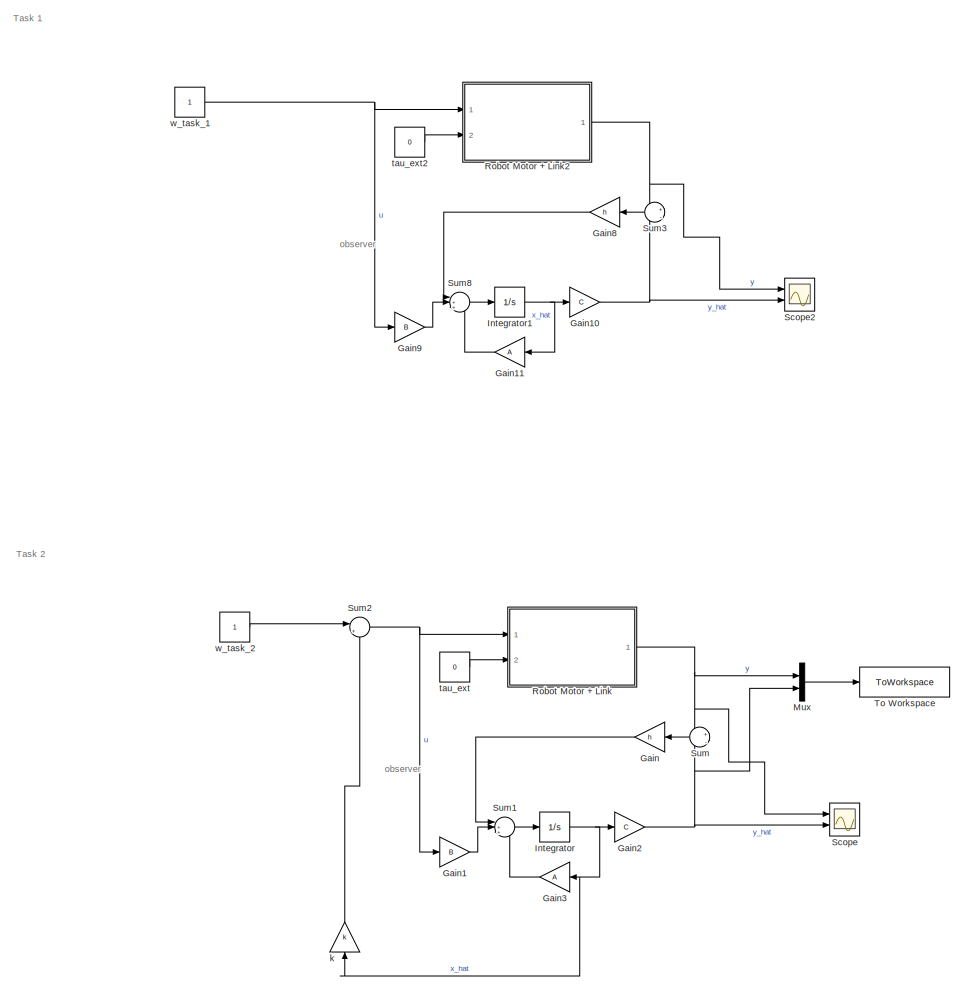
[diagram: root canvas - part 1/3, top left region]
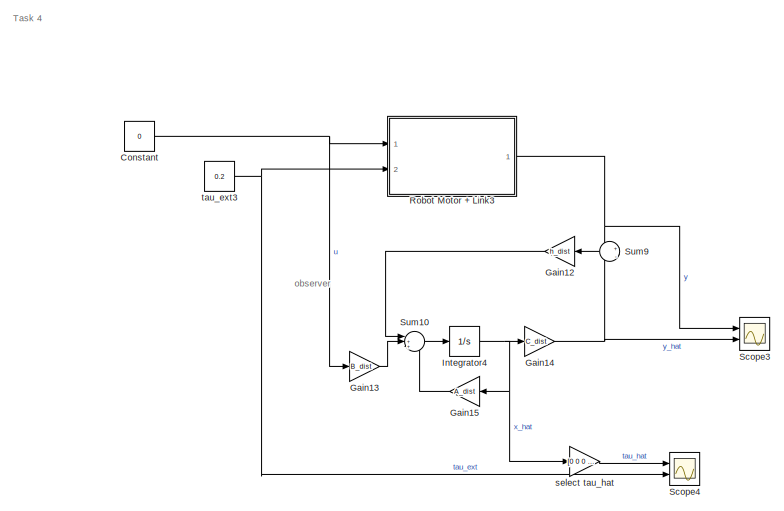
[diagram: root canvas - part 2/3, middle right region]
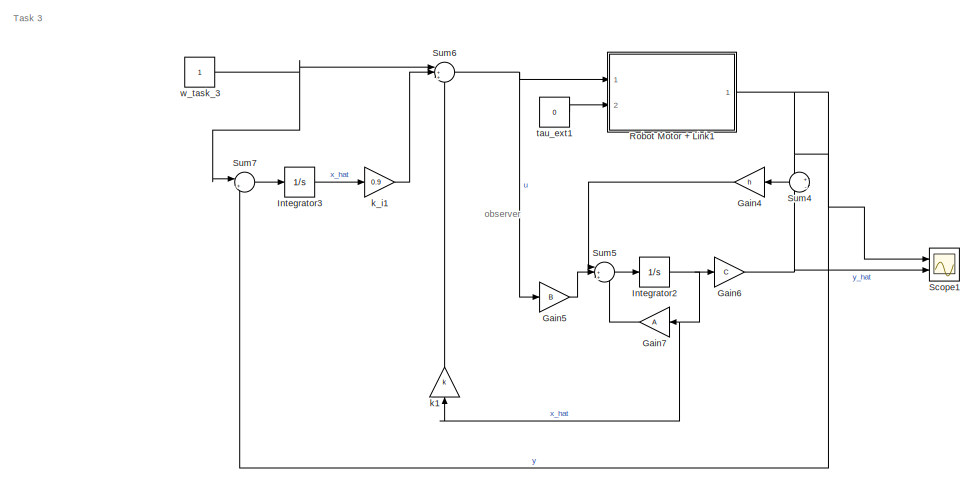
[diagram: root canvas - part 3/3, bottom left region]
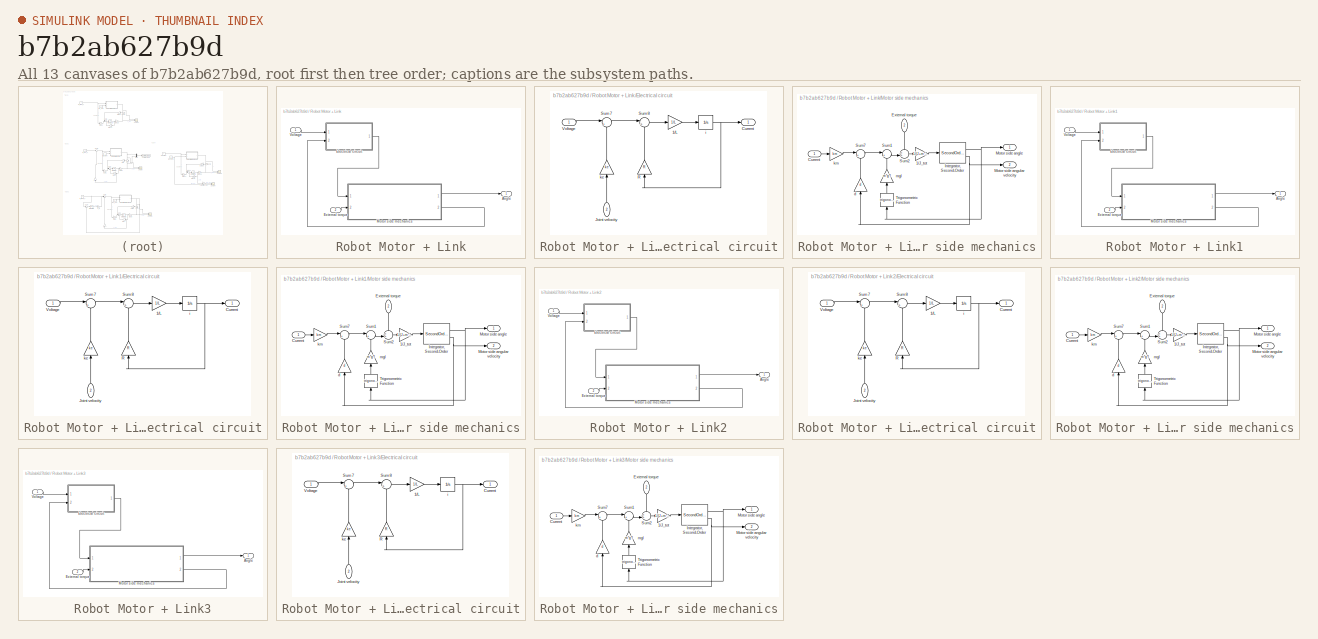
[diagram: thumbnail index - all 13 canvases of the model, root first then tree order]
MODEL slx_b7b2ab627b9d
KIND model
CONFIG AbsTol = auto
CONFIG EnableMultiTasking = off
CONFIG FixedStep = 0.001
CONFIG MaxStep = auto
CONFIG MinStep = auto
CONFIG RelTol = 1e-3
CONFIG SampleTimeConstraint = Unconstrained
CONFIG SolverName = ode4
CONFIG StartTime = 0.0
CONFIG StopTime = 15
BLOCK [Constant] Constant
  Value = 0
BLOCK [Gain] Gain
  Gain = h
  Multiplication = Matrix(K*u)
  NameLocation = top
BLOCK [Gain] Gain1
  Gain = B
  Multiplication = Matrix(K*u)
BLOCK [Gain] Gain10
  Gain = C
  Multiplication = Matrix(K*u)
BLOCK [Gain] Gain11
  Gain = A
  Multiplication = Matrix(K*u)
  NameLocation = top
BLOCK [Gain] Gain12
  Gain = h_dist
  Multiplication = Matrix(K*u)
  NameLocation = top
BLOCK [Gain] Gain13
  Gain = B_dist
  Multiplication = Matrix(K*u)
BLOCK [Gain] Gain14
  Gain = C_dist
  Multiplication = Matrix(K*u)
BLOCK [Gain] Gain15
  Gain = A_dist
  Multiplication = Matrix(K*u)
  NameLocation = top
BLOCK [Gain] Gain2
  Gain = C
  Multiplication = Matrix(K*u)
BLOCK [Gain] Gain3
  Gain = A
  Multiplication = Matrix(K*u)
  NameLocation = top
BLOCK [Gain] Gain4
  Gain = h
  Multiplication = Matrix(K*u)
  NameLocation = top
BLOCK [Gain] Gain5
  Gain = B
  Multiplication = Matrix(K*u)
BLOCK [Gain] Gain6
  Gain = C
  Multiplication = Matrix(K*u)
BLOCK [Gain] Gain7
  Gain = A
  Multiplication = Matrix(K*u)
  NameLocation = top
BLOCK [Gain] Gain8
  Gain = h
  Multiplication = Matrix(K*u)
  NameLocation = top
BLOCK [Gain] Gain9
  Gain = B
  Multiplication = Matrix(K*u)
BLOCK [Integrator] Integrator
  Ports = [1, 1]
BLOCK [Integrator] Integrator1
  Ports = [1, 1]
BLOCK [Integrator] Integrator2
  Ports = [1, 1]
BLOCK [Integrator] Integrator3
  Ports = [1, 1]
BLOCK [Integrator] Integrator4
  Ports = [1, 1]
BLOCK [Mux] Mux
  DisplayOption = bar
  Inputs = 2
  Ports = [2, 1]
BLOCK [SubSystem] Robot Motor + Link
  Ports = [2, 1]
  RequestExecContextInheritance = off
BLOCK [Outport] Robot Motor + Link/Angle
  VectorParamsAs1DForOutWhenUnconnected = off
BLOCK [SubSystem] Robot Motor + Link/Electrical circuit
  Ports = [2, 1]
  RequestExecContextInheritance = off
BLOCK [Gain] Robot Motor + Link/Electrical circuit/1//L
  Gain = 1/L
BLOCK [Outport] Robot Motor + Link/Electrical circuit/Current
  VectorParamsAs1DForOutWhenUnconnected = off
BLOCK [Inport] Robot Motor + Link/Electrical circuit/Joint velocity
  NameLocation = right
  Port = 2
BLOCK [Gain] Robot Motor + Link/Electrical circuit/R
  Gain = R
  NameLocation = right
BLOCK [Sum] Robot Motor + Link/Electrical circuit/Sum7
  Inputs = |+-
  Ports = [2, 1]
BLOCK [Sum] Robot Motor + Link/Electrical circuit/Sum8
  Inputs = |+-
  Ports = [2, 1]
BLOCK [Inport] Robot Motor + Link/Electrical circuit/Voltage
BLOCK [Integrator] Robot Motor + Link/Electrical circuit/i
  Ports = [1, 1]
BLOCK [Gain] Robot Motor + Link/Electrical circuit/ke
  Gain = ke
  NameLocation = right
BLOCK [Inport] Robot Motor + Link/External torque
  Port = 2
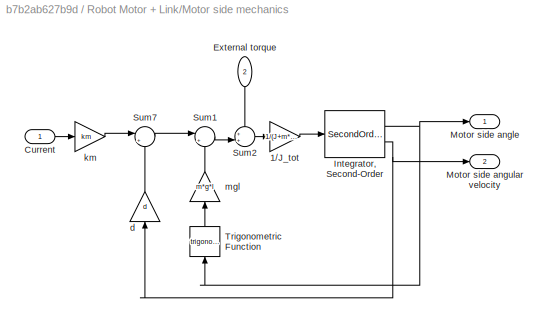
BLOCK [SubSystem] Robot Motor + Link/Motor side mechanics
  Ports = [2, 2]
  RequestExecContextInheritance = off
BLOCK [Gain] Robot Motor + Link/Motor side mechanics/1//J_tot
  Gain = 1/(J+m*l^2)
BLOCK [Inport] Robot Motor + Link/Motor side mechanics/Current
BLOCK [Inport] Robot Motor + Link/Motor side mechanics/External torque
  NameLocation = right
  Port = 2
BLOCK [SecondOrderIntegrator] Robot Motor + Link/Motor side mechanics/Integrator, Second-Order
  Ports = [1, 2]
BLOCK [Outport] Robot Motor + Link/Motor side mechanics/Motor side angle
  VectorParamsAs1DForOutWhenUnconnected = off
BLOCK [Outport] Robot Motor + Link/Motor side mechanics/Motor side angular velocity
  Port = 2
  VectorParamsAs1DForOutWhenUnconnected = off
BLOCK [Sum] Robot Motor + Link/Motor side mechanics/Sum1
  Inputs = |+-
  Ports = [2, 1]
BLOCK [Sum] Robot Motor + Link/Motor side mechanics/Sum2
  Inputs = ++|
  Ports = [2, 1]
BLOCK [Sum] Robot Motor + Link/Motor side mechanics/Sum7
  Inputs = |+-
  Ports = [2, 1]
BLOCK [Trigonometry] Robot Motor + Link/Motor side mechanics/Trigonometric Function
  NameLocation = right
  Ports = [1, 1]
BLOCK [Gain] Robot Motor + Link/Motor side mechanics/d
  Gain = d
  NameLocation = right
BLOCK [Gain] Robot Motor + Link/Motor side mechanics/km
  Gain = km
BLOCK [Gain] Robot Motor + Link/Motor side mechanics/mgl
  Gain = m*g*l
  NameLocation = right
BLOCK [Inport] Robot Motor + Link/Voltage
BLOCK [SubSystem] Robot Motor + Link1
  Ports = [2, 1]
  RequestExecContextInheritance = off
BLOCK [Outport] Robot Motor + Link1/Angle
  VectorParamsAs1DForOutWhenUnconnected = off
BLOCK [SubSystem] Robot Motor + Link1/Electrical circuit
  Ports = [2, 1]
  RequestExecContextInheritance = off
BLOCK [Gain] Robot Motor + Link1/Electrical circuit/1//L
  Gain = 1/L
BLOCK [Outport] Robot Motor + Link1/Electrical circuit/Current
  VectorParamsAs1DForOutWhenUnconnected = off
BLOCK [Inport] Robot Motor + Link1/Electrical circuit/Joint velocity
  NameLocation = right
  Port = 2
BLOCK [Gain] Robot Motor + Link1/Electrical circuit/R
  Gain = R
  NameLocation = right
BLOCK [Sum] Robot Motor + Link1/Electrical circuit/Sum7
  Inputs = |+-
  Ports = [2, 1]
BLOCK [Sum] Robot Motor + Link1/Electrical circuit/Sum8
  Inputs = |+-
  Ports = [2, 1]
BLOCK [Inport] Robot Motor + Link1/Electrical circuit/Voltage
BLOCK [Integrator] Robot Motor + Link1/Electrical circuit/i
  Ports = [1, 1]
BLOCK [Gain] Robot Motor + Link1/Electrical circuit/ke
  Gain = ke
  NameLocation = right
BLOCK [Inport] Robot Motor + Link1/External torque
  Port = 2
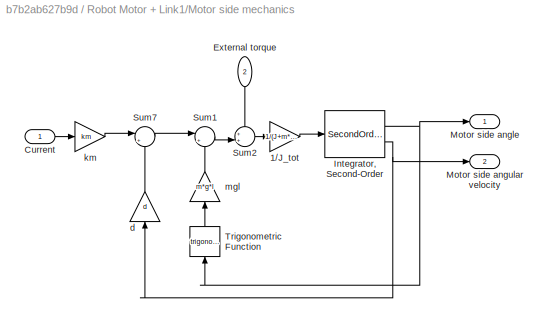
BLOCK [SubSystem] Robot Motor + Link1/Motor side mechanics
  Ports = [2, 2]
  RequestExecContextInheritance = off
BLOCK [Gain] Robot Motor + Link1/Motor side mechanics/1//J_tot
  Gain = 1/(J+m*l^2)
BLOCK [Inport] Robot Motor + Link1/Motor side mechanics/Current
BLOCK [Inport] Robot Motor + Link1/Motor side mechanics/External torque
  NameLocation = right
  Port = 2
BLOCK [SecondOrderIntegrator] Robot Motor + Link1/Motor side mechanics/Integrator, Second-Order
  Ports = [1, 2]
BLOCK [Outport] Robot Motor + Link1/Motor side mechanics/Motor side angle
  VectorParamsAs1DForOutWhenUnconnected = off
BLOCK [Outport] Robot Motor + Link1/Motor side mechanics/Motor side angular velocity
  Port = 2
  VectorParamsAs1DForOutWhenUnconnected = off
BLOCK [Sum] Robot Motor + Link1/Motor side mechanics/Sum1
  Inputs = |+-
  Ports = [2, 1]
BLOCK [Sum] Robot Motor + Link1/Motor side mechanics/Sum2
  Inputs = ++|
  Ports = [2, 1]
BLOCK [Sum] Robot Motor + Link1/Motor side mechanics/Sum7
  Inputs = |+-
  Ports = [2, 1]
BLOCK [Trigonometry] Robot Motor + Link1/Motor side mechanics/Trigonometric Function
  NameLocation = right
  Ports = [1, 1]
BLOCK [Gain] Robot Motor + Link1/Motor side mechanics/d
  Gain = d
  NameLocation = right
BLOCK [Gain] Robot Motor + Link1/Motor side mechanics/km
  Gain = km
BLOCK [Gain] Robot Motor + Link1/Motor side mechanics/mgl
  Gain = m*g*l
  NameLocation = right
BLOCK [Inport] Robot Motor + Link1/Voltage
BLOCK [SubSystem] Robot Motor + Link2
  Ports = [2, 1]
  RequestExecContextInheritance = off
BLOCK [Outport] Robot Motor + Link2/Angle
  VectorParamsAs1DForOutWhenUnconnected = off
BLOCK [SubSystem] Robot Motor + Link2/Electrical circuit
  Ports = [2, 1]
  RequestExecContextInheritance = off
BLOCK [Gain] Robot Motor + Link2/Electrical circuit/1//L
  Gain = 1/L
BLOCK [Outport] Robot Motor + Link2/Electrical circuit/Current
  VectorParamsAs1DForOutWhenUnconnected = off
BLOCK [Inport] Robot Motor + Link2/Electrical circuit/Joint velocity
  NameLocation = right
  Port = 2
BLOCK [Gain] Robot Motor + Link2/Electrical circuit/R
  Gain = R
  NameLocation = right
BLOCK [Sum] Robot Motor + Link2/Electrical circuit/Sum7
  Inputs = |+-
  Ports = [2, 1]
BLOCK [Sum] Robot Motor + Link2/Electrical circuit/Sum8
  Inputs = |+-
  Ports = [2, 1]
BLOCK [Inport] Robot Motor + Link2/Electrical circuit/Voltage
BLOCK [Integrator] Robot Motor + Link2/Electrical circuit/i
  Ports = [1, 1]
BLOCK [Gain] Robot Motor + Link2/Electrical circuit/ke
  Gain = ke
  NameLocation = right
BLOCK [Inport] Robot Motor + Link2/External torque
  Port = 2
BLOCK [SubSystem] Robot Motor + Link2/Motor side mechanics
  Ports = [2, 2]
  RequestExecContextInheritance = off
BLOCK [Gain] Robot Motor + Link2/Motor side mechanics/1//J_tot
  Gain = 1/(J+m*l^2)
BLOCK [Inport] Robot Motor + Link2/Motor side mechanics/Current
BLOCK [Inport] Robot Motor + Link2/Motor side mechanics/External torque
  NameLocation = right
  Port = 2
BLOCK [SecondOrderIntegrator] Robot Motor + Link2/Motor side mechanics/Integrator, Second-Order
  Ports = [1, 2]
BLOCK [Outport] Robot Motor + Link2/Motor side mechanics/Motor side angle
  VectorParamsAs1DForOutWhenUnconnected = off
BLOCK [Outport] Robot Motor + Link2/Motor side mechanics/Motor side angular velocity
  Port = 2
  VectorParamsAs1DForOutWhenUnconnected = off
BLOCK [Sum] Robot Motor + Link2/Motor side mechanics/Sum1
  Inputs = |+-
  Ports = [2, 1]
BLOCK [Sum] Robot Motor + Link2/Motor side mechanics/Sum2
  Inputs = ++|
  Ports = [2, 1]
BLOCK [Sum] Robot Motor + Link2/Motor side mechanics/Sum7
  Inputs = |+-
  Ports = [2, 1]
BLOCK [Trigonometry] Robot Motor + Link2/Motor side mechanics/Trigonometric Function
  NameLocation = right
  Ports = [1, 1]
BLOCK [Gain] Robot Motor + Link2/Motor side mechanics/d
  Gain = d
  NameLocation = right
BLOCK [Gain] Robot Motor + Link2/Motor side mechanics/km
  Gain = km
BLOCK [Gain] Robot Motor + Link2/Motor side mechanics/mgl
  Gain = m*g*l
  NameLocation = right
BLOCK [Inport] Robot Motor + Link2/Voltage
BLOCK [SubSystem] Robot Motor + Link3
  Ports = [2, 1]
  RequestExecContextInheritance = off
BLOCK [Outport] Robot Motor + Link3/Angle
  VectorParamsAs1DForOutWhenUnconnected = off
BLOCK [SubSystem] Robot Motor + Link3/Electrical circuit
  Ports = [2, 1]
  RequestExecContextInheritance = off
BLOCK [Gain] Robot Motor + Link3/Electrical circuit/1//L
  Gain = 1/L
BLOCK [Outport] Robot Motor + Link3/Electrical circuit/Current
  VectorParamsAs1DForOutWhenUnconnected = off
BLOCK [Inport] Robot Motor + Link3/Electrical circuit/Joint velocity
  NameLocation = right
  Port = 2
BLOCK [Gain] Robot Motor + Link3/Electrical circuit/R
  Gain = R
  NameLocation = right
BLOCK [Sum] Robot Motor + Link3/Electrical circuit/Sum7
  Inputs = |+-
  Ports = [2, 1]
BLOCK [Sum] Robot Motor + Link3/Electrical circuit/Sum8
  Inputs = |+-
  Ports = [2, 1]
BLOCK [Inport] Robot Motor + Link3/Electrical circuit/Voltage
BLOCK [Integrator] Robot Motor + Link3/Electrical circuit/i
  Ports = [1, 1]
BLOCK [Gain] Robot Motor + Link3/Electrical circuit/ke
  Gain = ke
  NameLocation = right
BLOCK [Inport] Robot Motor + Link3/External torque
  Port = 2
BLOCK [SubSystem] Robot Motor + Link3/Motor side mechanics
  Ports = [2, 2]
  RequestExecContextInheritance = off
BLOCK [Gain] Robot Motor + Link3/Motor side mechanics/1//J_tot
  Gain = 1/(J+m*l^2)
BLOCK [Inport] Robot Motor + Link3/Motor side mechanics/Current
BLOCK [Inport] Robot Motor + Link3/Motor side mechanics/External torque
  NameLocation = right
  Port = 2
BLOCK [SecondOrderIntegrator] Robot Motor + Link3/Motor side mechanics/Integrator, Second-Order
  Ports = [1, 2]
BLOCK [Outport] Robot Motor + Link3/Motor side mechanics/Motor side angle
  VectorParamsAs1DForOutWhenUnconnected = off
BLOCK [Outport] Robot Motor + Link3/Motor side mechanics/Motor side angular velocity
  Port = 2
  VectorParamsAs1DForOutWhenUnconnected = off
BLOCK [Sum] Robot Motor + Link3/Motor side mechanics/Sum1
  Inputs = |+-
  Ports = [2, 1]
BLOCK [Sum] Robot Motor + Link3/Motor side mechanics/Sum2
  Inputs = ++|
  Ports = [2, 1]
BLOCK [Sum] Robot Motor + Link3/Motor side mechanics/Sum7
  Inputs = |+-
  Ports = [2, 1]
BLOCK [Trigonometry] Robot Motor + Link3/Motor side mechanics/Trigonometric Function
  NameLocation = right
  Ports = [1, 1]
BLOCK [Gain] Robot Motor + Link3/Motor side mechanics/d
  Gain = d
  NameLocation = right
BLOCK [Gain] Robot Motor + Link3/Motor side mechanics/km
  Gain = km
BLOCK [Gain] Robot Motor + Link3/Motor side mechanics/mgl
  Gain = m*g*l
  NameLocation = right
BLOCK [Inport] Robot Motor + Link3/Voltage
BLOCK [Scope] Scope
  Floating = off
  NumInputPorts = 2
  Ports = [2]
  ScopeSpecificationString = Simulink.scopes.TimeScopeBlockCfg('CurrentConfiguration', extmgr.ConfigurationSet(extmgr.Configuration('Core','General UI',true),extmgr.Configuration('Core','Source UI',true),extmgr.Configuration('Sources','WiredSimulink',true),extmgr.Configuration('Visuals','Time Domain',true,'SerializedDisplays',{struct('MinYLimReal','-0.03194','MaxYLimReal','0.28747','YLabelReal','','MinYLimMag','0.00000','MaxY...<+1318ch>
BLOCK [Scope] Scope1
  Floating = off
  NumInputPorts = 2
  Ports = [2]
  ScopeSpecificationString = Simulink.scopes.TimeScopeBlockCfg('CurrentConfiguration', extmgr.ConfigurationSet(extmgr.Configuration('Core','General UI',true),extmgr.Configuration('Core','Source UI',true),extmgr.Configuration('Sources','WiredSimulink',true,'DataLoggingVariableName','ScopeData1'),extmgr.Configuration('Visuals','Time Domain',true,'SerializedDisplays',{struct('MinYLimReal','-0.12596','MaxYLimReal','1.1336','YLabe...<+1362ch>
BLOCK [Scope] Scope2
  Floating = off
  NumInputPorts = 2
  Ports = [2]
  ScopeSpecificationString = Simulink.scopes.TimeScopeBlockCfg('CurrentConfiguration', extmgr.ConfigurationSet(extmgr.Configuration('Core','General UI',true),extmgr.Configuration('Core','Source UI',true),extmgr.Configuration('Sources','WiredSimulink',true,'DataLoggingVariableName','ScopeData2'),extmgr.Configuration('Visuals','Time Domain',true,'SerializedDisplays',{struct('MinYLimReal','-0.13002','MaxYLimReal','1.17022','YLab...<+1357ch>
BLOCK [Scope] Scope3
  Floating = off
  NumInputPorts = 2
  Ports = [2]
  ScopeSpecificationString = Simulink.scopes.TimeScopeBlockCfg('CurrentConfiguration', extmgr.ConfigurationSet(extmgr.Configuration('Core','General UI',true),extmgr.Configuration('Core','Source UI',true),extmgr.Configuration('Sources','WiredSimulink',true,'DataLoggingVariableName','ScopeData3'),extmgr.Configuration('Visuals','Time Domain',true,'SerializedDisplays',{struct('MinYLimReal','-0.02','MaxYLimReal','0.17998','YLabelR...<+1351ch>
BLOCK [Scope] Scope4
  Floating = off
  NumInputPorts = 2
  Ports = [2]
  ScopeSpecificationString = Simulink.scopes.TimeScopeBlockCfg('CurrentConfiguration', extmgr.ConfigurationSet(extmgr.Configuration('Core','General UI',true),extmgr.Configuration('Core','Source UI',true),extmgr.Configuration('Sources','WiredSimulink',true,'DataLoggingVariableName','ScopeData4'),extmgr.Configuration('Visuals','Time Domain',true,'SerializedDisplays',{struct('MinYLimReal','-0.02605','MaxYLimReal','0.23445','YLab...<+1359ch>
BLOCK [Sum] Sum
  Inputs = +|-
  NameLocation = top
  Ports = [2, 1]
BLOCK [Sum] Sum1
  Inputs = |+++
  Ports = [3, 1]
BLOCK [Sum] Sum10
  Inputs = |+++
  Ports = [3, 1]
BLOCK [Sum] Sum2
  Inputs = |++
  Ports = [2, 1]
BLOCK [Sum] Sum3
  Inputs = +|-
  NameLocation = top
  Ports = [2, 1]
BLOCK [Sum] Sum4
  Inputs = +|-
  NameLocation = top
  Ports = [2, 1]
BLOCK [Sum] Sum5
  Inputs = |+++
  Ports = [3, 1]
BLOCK [Sum] Sum6
  Inputs = |+++
  Ports = [3, 1]
BLOCK [Sum] Sum7
  Inputs = |+-
  Ports = [2, 1]
BLOCK [Sum] Sum8
  Inputs = |+++
  Ports = [3, 1]
BLOCK [Sum] Sum9
  Inputs = +|-
  NameLocation = top
  Ports = [2, 1]
BLOCK [ToWorkspace] To Workspace
  FixptAsFi = on
  MaxDataPoints = inf
  Ports = [1]
  SampleTime = -1
  SaveFormat = Timeseries
  VariableName = task2
BLOCK [Gain] k
  Gain = k
  Multiplication = Matrix(K*u)
  NameLocation = right
BLOCK [Gain] k1
  Gain = k
  Multiplication = Matrix(K*u)
  NameLocation = right
BLOCK [Gain] k_i1
  Gain = 0.9
BLOCK [Gain] select tau_hat
  Gain = [0 0 0 1]
  Multiplication = Matrix(K*u)
BLOCK [Constant] tau_ext
  Value = 0
BLOCK [Constant] tau_ext1
  Value = 0
BLOCK [Constant] tau_ext2
  Value = 0
BLOCK [Constant] tau_ext3
  Value = 0.2
BLOCK [Constant] w_task_1
BLOCK [Constant] w_task_2
BLOCK [Constant] w_task_3
ANNOTATION (root): Task 1
ANNOTATION (root): Task 2
ANNOTATION (root): Task 3
ANNOTATION (root): Task 4
ANNOTATION (root): observer
NET Constant:1 -> Gain13:1, Robot Motor + Link3:1
NET Gain10:1 -> Scope2:2, Sum3:2
LINE Gain11:1 -> Sum8:3
LINE Gain12:1 -> Sum10:1
LINE Gain13:1 -> Sum10:2
NET Gain14:1 -> Scope3:2, Sum9:2
LINE Gain15:1 -> Sum10:3
LINE Gain1:1 -> Sum1:2
NET Gain2:1 -> Mux:2, Scope:2, Sum:2
LINE Gain3:1 -> Sum1:3
LINE Gain4:1 -> Sum5:1
LINE Gain5:1 -> Sum5:2
NET Gain6:1 -> Scope1:2, Sum4:2
LINE Gain7:1 -> Sum5:3
LINE Gain8:1 -> Sum8:1
LINE Gain9:1 -> Sum8:2
LINE Gain:1 -> Sum1:1
NET Integrator1:1 -> Gain10:1, Gain11:1
NET Integrator2:1 -> Gain6:1, Gain7:1, k1:1
LINE Integrator3:1 -> k_i1:1
NET Integrator4:1 -> Gain14:1, Gain15:1, select tau_hat:1
NET Integrator:1 -> Gain2:1, Gain3:1, k:1
LINE Mux:1 -> To Workspace:1
LINE Robot Motor + Link/Electrical circuit/1//L:1 -> Robot Motor + Link/Electrical circuit/i:1
LINE Robot Motor + Link/Electrical circuit/Joint velocity:1 -> Robot Motor + Link/Electrical circuit/ke:1
LINE Robot Motor + Link/Electrical circuit/R:1 -> Robot Motor + Link/Electrical circuit/Sum8:2
LINE Robot Motor + Link/Electrical circuit/Sum7:1 -> Robot Motor + Link/Electrical circuit/Sum8:1
LINE Robot Motor + Link/Electrical circuit/Sum8:1 -> Robot Motor + Link/Electrical circuit/1//L:1
LINE Robot Motor + Link/Electrical circuit/Voltage:1 -> Robot Motor + Link/Electrical circuit/Sum7:1
NET Robot Motor + Link/Electrical circuit/i:1 -> Robot Motor + Link/Electrical circuit/Current:1, Robot Motor + Link/Electrical circuit/R:1
LINE Robot Motor + Link/Electrical circuit/ke:1 -> Robot Motor + Link/Electrical circuit/Sum7:2
LINE Robot Motor + Link/Electrical circuit:1 -> Robot Motor + Link/Motor side mechanics:1
LINE Robot Motor + Link/External torque:1 -> Robot Motor + Link/Motor side mechanics:2
LINE Robot Motor + Link/Motor side mechanics/1//J_tot:1 -> Robot Motor + Link/Motor side mechanics/Integrator, Second-Order:1
LINE Robot Motor + Link/Motor side mechanics/Current:1 -> Robot Motor + Link/Motor side mechanics/km:1
LINE Robot Motor + Link/Motor side mechanics/External torque:1 -> Robot Motor + Link/Motor side mechanics/Sum2:1
NET Robot Motor + Link/Motor side mechanics/Integrator, Second-Order:1 -> Robot Motor + Link/Motor side mechanics/Motor side angle:1, Robot Motor + Link/Motor side mechanics/Trigonometric Function:1
NET Robot Motor + Link/Motor side mechanics/Integrator, Second-Order:2 -> Robot Motor + Link/Motor side mechanics/Motor side angular velocity:1, Robot Motor + Link/Motor side mechanics/d:1
LINE Robot Motor + Link/Motor side mechanics/Sum1:1 -> Robot Motor + Link/Motor side mechanics/Sum2:2
LINE Robot Motor + Link/Motor side mechanics/Sum2:1 -> Robot Motor + Link/Motor side mechanics/1//J_tot:1
LINE Robot Motor + Link/Motor side mechanics/Sum7:1 -> Robot Motor + Link/Motor side mechanics/Sum1:1
LINE Robot Motor + Link/Motor side mechanics/Trigonometric Function:1 -> Robot Motor + Link/Motor side mechanics/mgl:1
LINE Robot Motor + Link/Motor side mechanics/d:1 -> Robot Motor + Link/Motor side mechanics/Sum7:2
LINE Robot Motor + Link/Motor side mechanics/km:1 -> Robot Motor + Link/Motor side mechanics/Sum7:1
LINE Robot Motor + Link/Motor side mechanics/mgl:1 -> Robot Motor + Link/Motor side mechanics/Sum1:2
LINE Robot Motor + Link/Motor side mechanics:1 -> Robot Motor + Link/Angle:1
LINE Robot Motor + Link/Motor side mechanics:2 -> Robot Motor + Link/Electrical circuit:2
LINE Robot Motor + Link/Voltage:1 -> Robot Motor + Link/Electrical circuit:1
LINE Robot Motor + Link1/Electrical circuit/1//L:1 -> Robot Motor + Link1/Electrical circuit/i:1
LINE Robot Motor + Link1/Electrical circuit/Joint velocity:1 -> Robot Motor + Link1/Electrical circuit/ke:1
LINE Robot Motor + Link1/Electrical circuit/R:1 -> Robot Motor + Link1/Electrical circuit/Sum8:2
LINE Robot Motor + Link1/Electrical circuit/Sum7:1 -> Robot Motor + Link1/Electrical circuit/Sum8:1
LINE Robot Motor + Link1/Electrical circuit/Sum8:1 -> Robot Motor + Link1/Electrical circuit/1//L:1
LINE Robot Motor + Link1/Electrical circuit/Voltage:1 -> Robot Motor + Link1/Electrical circuit/Sum7:1
NET Robot Motor + Link1/Electrical circuit/i:1 -> Robot Motor + Link1/Electrical circuit/Current:1, Robot Motor + Link1/Electrical circuit/R:1
LINE Robot Motor + Link1/Electrical circuit/ke:1 -> Robot Motor + Link1/Electrical circuit/Sum7:2
LINE Robot Motor + Link1/Electrical circuit:1 -> Robot Motor + Link1/Motor side mechanics:1
LINE Robot Motor + Link1/External torque:1 -> Robot Motor + Link1/Motor side mechanics:2
LINE Robot Motor + Link1/Motor side mechanics/1//J_tot:1 -> Robot Motor + Link1/Motor side mechanics/Integrator, Second-Order:1
LINE Robot Motor + Link1/Motor side mechanics/Current:1 -> Robot Motor + Link1/Motor side mechanics/km:1
LINE Robot Motor + Link1/Motor side mechanics/External torque:1 -> Robot Motor + Link1/Motor side mechanics/Sum2:1
NET Robot Motor + Link1/Motor side mechanics/Integrator, Second-Order:1 -> Robot Motor + Link1/Motor side mechanics/Motor side angle:1, Robot Motor + Link1/Motor side mechanics/Trigonometric Function:1
NET Robot Motor + Link1/Motor side mechanics/Integrator, Second-Order:2 -> Robot Motor + Link1/Motor side mechanics/Motor side angular velocity:1, Robot Motor + Link1/Motor side mechanics/d:1
LINE Robot Motor + Link1/Motor side mechanics/Sum1:1 -> Robot Motor + Link1/Motor side mechanics/Sum2:2
LINE Robot Motor + Link1/Motor side mechanics/Sum2:1 -> Robot Motor + Link1/Motor side mechanics/1//J_tot:1
LINE Robot Motor + Link1/Motor side mechanics/Sum7:1 -> Robot Motor + Link1/Motor side mechanics/Sum1:1
LINE Robot Motor + Link1/Motor side mechanics/Trigonometric Function:1 -> Robot Motor + Link1/Motor side mechanics/mgl:1
LINE Robot Motor + Link1/Motor side mechanics/d:1 -> Robot Motor + Link1/Motor side mechanics/Sum7:2
LINE Robot Motor + Link1/Motor side mechanics/km:1 -> Robot Motor + Link1/Motor side mechanics/Sum7:1
LINE Robot Motor + Link1/Motor side mechanics/mgl:1 -> Robot Motor + Link1/Motor side mechanics/Sum1:2
LINE Robot Motor + Link1/Motor side mechanics:1 -> Robot Motor + Link1/Angle:1
LINE Robot Motor + Link1/Motor side mechanics:2 -> Robot Motor + Link1/Electrical circuit:2
LINE Robot Motor + Link1/Voltage:1 -> Robot Motor + Link1/Electrical circuit:1
NET Robot Motor + Link1:1 -> Scope1:1, Sum4:1, Sum7:2
LINE Robot Motor + Link2/Electrical circuit/1//L:1 -> Robot Motor + Link2/Electrical circuit/i:1
LINE Robot Motor + Link2/Electrical circuit/Joint velocity:1 -> Robot Motor + Link2/Electrical circuit/ke:1
LINE Robot Motor + Link2/Electrical circuit/R:1 -> Robot Motor + Link2/Electrical circuit/Sum8:2
LINE Robot Motor + Link2/Electrical circuit/Sum7:1 -> Robot Motor + Link2/Electrical circuit/Sum8:1
LINE Robot Motor + Link2/Electrical circuit/Sum8:1 -> Robot Motor + Link2/Electrical circuit/1//L:1
LINE Robot Motor + Link2/Electrical circuit/Voltage:1 -> Robot Motor + Link2/Electrical circuit/Sum7:1
NET Robot Motor + Link2/Electrical circuit/i:1 -> Robot Motor + Link2/Electrical circuit/Current:1, Robot Motor + Link2/Electrical circuit/R:1
LINE Robot Motor + Link2/Electrical circuit/ke:1 -> Robot Motor + Link2/Electrical circuit/Sum7:2
LINE Robot Motor + Link2/Electrical circuit:1 -> Robot Motor + Link2/Motor side mechanics:1
LINE Robot Motor + Link2/External torque:1 -> Robot Motor + Link2/Motor side mechanics:2
LINE Robot Motor + Link2/Motor side mechanics/1//J_tot:1 -> Robot Motor + Link2/Motor side mechanics/Integrator, Second-Order:1
LINE Robot Motor + Link2/Motor side mechanics/Current:1 -> Robot Motor + Link2/Motor side mechanics/km:1
LINE Robot Motor + Link2/Motor side mechanics/External torque:1 -> Robot Motor + Link2/Motor side mechanics/Sum2:1
NET Robot Motor + Link2/Motor side mechanics/Integrator, Second-Order:1 -> Robot Motor + Link2/Motor side mechanics/Motor side angle:1, Robot Motor + Link2/Motor side mechanics/Trigonometric Function:1
NET Robot Motor + Link2/Motor side mechanics/Integrator, Second-Order:2 -> Robot Motor + Link2/Motor side mechanics/Motor side angular velocity:1, Robot Motor + Link2/Motor side mechanics/d:1
LINE Robot Motor + Link2/Motor side mechanics/Sum1:1 -> Robot Motor + Link2/Motor side mechanics/Sum2:2
LINE Robot Motor + Link2/Motor side mechanics/Sum2:1 -> Robot Motor + Link2/Motor side mechanics/1//J_tot:1
LINE Robot Motor + Link2/Motor side mechanics/Sum7:1 -> Robot Motor + Link2/Motor side mechanics/Sum1:1
LINE Robot Motor + Link2/Motor side mechanics/Trigonometric Function:1 -> Robot Motor + Link2/Motor side mechanics/mgl:1
LINE Robot Motor + Link2/Motor side mechanics/d:1 -> Robot Motor + Link2/Motor side mechanics/Sum7:2
LINE Robot Motor + Link2/Motor side mechanics/km:1 -> Robot Motor + Link2/Motor side mechanics/Sum7:1
LINE Robot Motor + Link2/Motor side mechanics/mgl:1 -> Robot Motor + Link2/Motor side mechanics/Sum1:2
LINE Robot Motor + Link2/Motor side mechanics:1 -> Robot Motor + Link2/Angle:1
LINE Robot Motor + Link2/Motor side mechanics:2 -> Robot Motor + Link2/Electrical circuit:2
LINE Robot Motor + Link2/Voltage:1 -> Robot Motor + Link2/Electrical circuit:1
NET Robot Motor + Link2:1 -> Scope2:1, Sum3:1
LINE Robot Motor + Link3/Electrical circuit/1//L:1 -> Robot Motor + Link3/Electrical circuit/i:1
LINE Robot Motor + Link3/Electrical circuit/Joint velocity:1 -> Robot Motor + Link3/Electrical circuit/ke:1
LINE Robot Motor + Link3/Electrical circuit/R:1 -> Robot Motor + Link3/Electrical circuit/Sum8:2
LINE Robot Motor + Link3/Electrical circuit/Sum7:1 -> Robot Motor + Link3/Electrical circuit/Sum8:1
LINE Robot Motor + Link3/Electrical circuit/Sum8:1 -> Robot Motor + Link3/Electrical circuit/1//L:1
LINE Robot Motor + Link3/Electrical circuit/Voltage:1 -> Robot Motor + Link3/Electrical circuit/Sum7:1
NET Robot Motor + Link3/Electrical circuit/i:1 -> Robot Motor + Link3/Electrical circuit/Current:1, Robot Motor + Link3/Electrical circuit/R:1
LINE Robot Motor + Link3/Electrical circuit/ke:1 -> Robot Motor + Link3/Electrical circuit/Sum7:2
LINE Robot Motor + Link3/Electrical circuit:1 -> Robot Motor + Link3/Motor side mechanics:1
LINE Robot Motor + Link3/External torque:1 -> Robot Motor + Link3/Motor side mechanics:2
LINE Robot Motor + Link3/Motor side mechanics/1//J_tot:1 -> Robot Motor + Link3/Motor side mechanics/Integrator, Second-Order:1
LINE Robot Motor + Link3/Motor side mechanics/Current:1 -> Robot Motor + Link3/Motor side mechanics/km:1
LINE Robot Motor + Link3/Motor side mechanics/External torque:1 -> Robot Motor + Link3/Motor side mechanics/Sum2:1
NET Robot Motor + Link3/Motor side mechanics/Integrator, Second-Order:1 -> Robot Motor + Link3/Motor side mechanics/Motor side angle:1, Robot Motor + Link3/Motor side mechanics/Trigonometric Function:1
NET Robot Motor + Link3/Motor side mechanics/Integrator, Second-Order:2 -> Robot Motor + Link3/Motor side mechanics/Motor side angular velocity:1, Robot Motor + Link3/Motor side mechanics/d:1
LINE Robot Motor + Link3/Motor side mechanics/Sum1:1 -> Robot Motor + Link3/Motor side mechanics/Sum2:2
LINE Robot Motor + Link3/Motor side mechanics/Sum2:1 -> Robot Motor + Link3/Motor side mechanics/1//J_tot:1
LINE Robot Motor + Link3/Motor side mechanics/Sum7:1 -> Robot Motor + Link3/Motor side mechanics/Sum1:1
LINE Robot Motor + Link3/Motor side mechanics/Trigonometric Function:1 -> Robot Motor + Link3/Motor side mechanics/mgl:1
LINE Robot Motor + Link3/Motor side mechanics/d:1 -> Robot Motor + Link3/Motor side mechanics/Sum7:2
LINE Robot Motor + Link3/Motor side mechanics/km:1 -> Robot Motor + Link3/Motor side mechanics/Sum7:1
LINE Robot Motor + Link3/Motor side mechanics/mgl:1 -> Robot Motor + Link3/Motor side mechanics/Sum1:2
LINE Robot Motor + Link3/Motor side mechanics:1 -> Robot Motor + Link3/Angle:1
LINE Robot Motor + Link3/Motor side mechanics:2 -> Robot Motor + Link3/Electrical circuit:2
LINE Robot Motor + Link3/Voltage:1 -> Robot Motor + Link3/Electrical circuit:1
NET Robot Motor + Link3:1 -> Scope3:1, Sum9:1
NET Robot Motor + Link:1 -> Mux:1, Scope:1, Sum:1
LINE Sum10:1 -> Integrator4:1
LINE Sum1:1 -> Integrator:1
NET Sum2:1 -> Gain1:1, Robot Motor + Link:1
LINE Sum3:1 -> Gain8:1
LINE Sum4:1 -> Gain4:1
LINE Sum5:1 -> Integrator2:1
NET Sum6:1 -> Gain5:1, Robot Motor + Link1:1
LINE Sum7:1 -> Integrator3:1
LINE Sum8:1 -> Integrator1:1
LINE Sum9:1 -> Gain12:1
LINE Sum:1 -> Gain:1
LINE k1:1 -> Sum6:3
LINE k:1 -> Sum2:2
LINE k_i1:1 -> Sum6:2
LINE select tau_hat:1 -> Scope4:1
LINE tau_ext1:1 -> Robot Motor + Link1:2
LINE tau_ext2:1 -> Robot Motor + Link2:2
NET tau_ext3:1 -> Robot Motor + Link3:2, Scope4:2
LINE tau_ext:1 -> Robot Motor + Link:2
NET w_task_1:1 -> Gain9:1, Robot Motor + Link2:1
LINE w_task_2:1 -> Sum2:1
NET w_task_3:1 -> Sum6:1, Sum7:1
note: NET lines group one-source signal fan-out (src -> all destinations, sorted); 1:1 wires keep LINE
